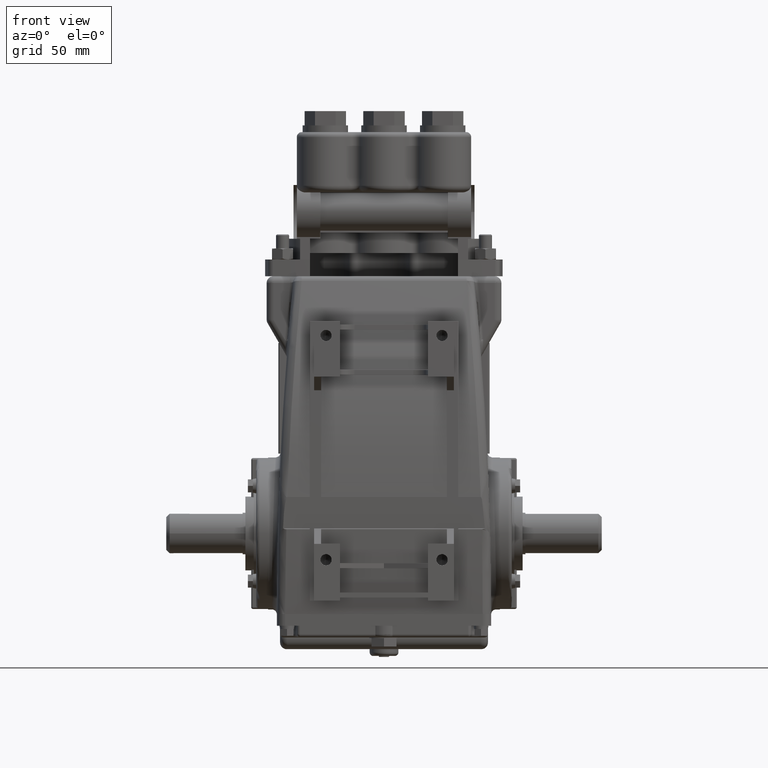
[diagram: clean part render]
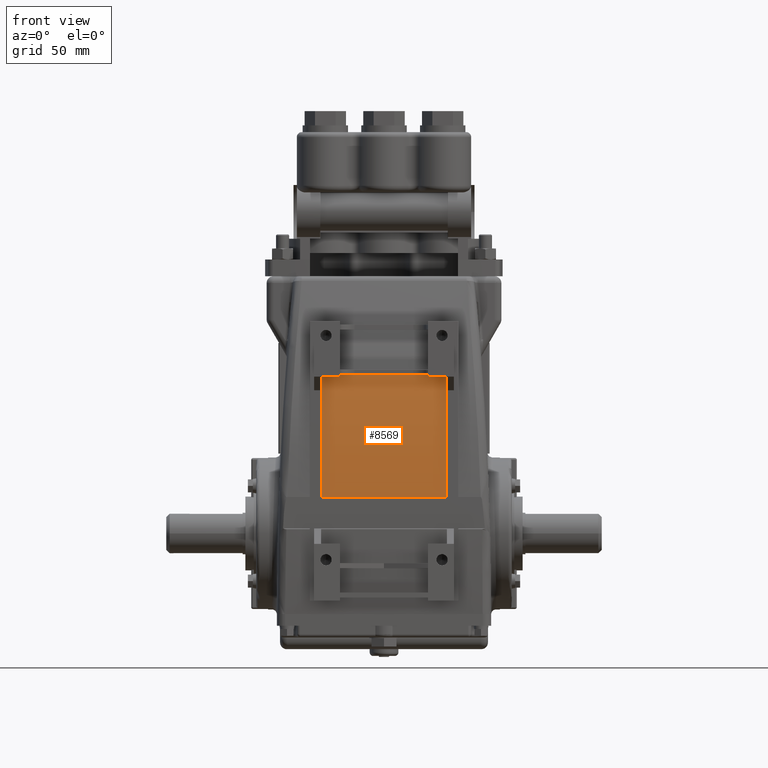
[diagram: same view with one face highlighted and labeled with its STEP entity id]
A machine part, front view. The second image highlights one B-rep face of the part: STEP entity #8569.
In plain terms, the highlighted cylindrical surface (partial cylindrical patch) has radius 634.291 mm, axis along (-1, -0, -0).
Its self-contained STEP definition (entity closure, byte-faithful):
#8407 = VERTEX_POINT ( 'NONE', #32108 ) ;
#8411 = EDGE_CURVE ( 'NONE', #8407, #8414, #32107, .T. ) ;
#8414 = VERTEX_POINT ( 'NONE', #32102 ) ;
#8434 = VERTEX_POINT ( 'NONE', #32123 ) ;
#8437 = EDGE_CURVE ( 'NONE', #8434, #8438, #32122, .T. ) ;
#8438 = VERTEX_POINT ( 'NONE', #32117 ) ;
#8540 = ORIENTED_EDGE ( 'NONE', *, *, #8541, .F. ) ;
#8541 = EDGE_CURVE ( 'NONE', #8542, #8579, #32245, .T. ) ;
#8542 = VERTEX_POINT ( 'NONE', #32240 ) ;
#8544 = ORIENTED_EDGE ( 'NONE', *, *, #8546, .F. ) ;
#8546 = EDGE_CURVE ( 'NONE', #8549, #8542, #32239, .T. ) ;
#8549 = VERTEX_POINT ( 'NONE', #32235 ) ;
#8550 = ORIENTED_EDGE ( 'NONE', *, *, #8551, .F. ) ;
#8551 = EDGE_CURVE ( 'NONE', #8552, #8549, #32234, .T. ) ;
#8552 = VERTEX_POINT ( 'NONE', #32288 ) ;
#8553 = ORIENTED_EDGE ( 'NONE', *, *, #8555, .F. ) ;
#8555 = EDGE_CURVE ( 'NONE', #8438, #8552, #32286, .T. ) ;
#8569 = ADVANCED_FACE ( 'NONE', ( #32306 ), #32346, .T. ) ;
#8570 = EDGE_LOOP ( 'NONE', ( #8571, #8572, #8575, #8576, #8540, #8544, #8550, #8553 ) ) ;
#8571 = ORIENTED_EDGE ( 'NONE', *, *, #8437, .F. ) ;
#8572 = ORIENTED_EDGE ( 'NONE', *, *, #8573, .T. ) ;
#8573 = EDGE_CURVE ( 'NONE', #8434, #8414, #32341, .T. ) ;
#8575 = ORIENTED_EDGE ( 'NONE', *, *, #8411, .F. ) ;
#8576 = ORIENTED_EDGE ( 'NONE', *, *, #8578, .F. ) ;
#8578 = EDGE_CURVE ( 'NONE', #8579, #8407, #32337, .T. ) ;
#8579 = VERTEX_POINT ( 'NONE', #32333 ) ;
#32102 = CARTESIAN_POINT ( 'NONE',  ( 1.874999999999999600, -2.863300000000000200, 1.087740777177397300 ) ) ;
#32103 = DIRECTION ( 'NONE',  ( 1.093960987013592300E-016, 0.0000000000000000000, 1.000000000000000000 ) ) ;
#32104 = DIRECTION ( 'NONE',  ( 1.000000000000000000, -0.0000000000000000000, -1.094929055576859100E-016 ) ) ;
#32105 = CARTESIAN_POINT ( 'NONE',  ( 1.874999999999998900, 22.08820325237938300, 0.07423032657123565500 ) ) ;
#32106 = AXIS2_PLACEMENT_3D ( 'NONE', #32105, #32104, #32103 ) ;
#32107 = CIRCLE ( 'NONE', #32106, 24.97207876783562600 ) ;
#32108 = CARTESIAN_POINT ( 'NONE',  ( 1.874999999999999600, -2.455464030696112000, 4.679999999999997900 ) ) ;
#32117 = CARTESIAN_POINT ( 'NONE',  ( -1.875000000000000000, -2.455464030696112000, 4.679999999999998800 ) ) ;
#32118 = DIRECTION ( 'NONE',  ( -2.187921974027184600E-016, 0.0000000000000000000, -1.000000000000000000 ) ) ;
#32119 = DIRECTION ( 'NONE',  ( -1.000000000000000000, -0.0000000000000000000, 2.189858111153718100E-016 ) ) ;
#32120 = CARTESIAN_POINT ( 'NONE',  ( -1.875000000000002200, 22.08820325237938300, 0.07423032657123565500 ) ) ;
#32121 = AXIS2_PLACEMENT_3D ( 'NONE', #32120, #32119, #32118 ) ;
#32122 = CIRCLE ( 'NONE', #32121, 24.97207876783562600 ) ;
#32123 = CARTESIAN_POINT ( 'NONE',  ( -1.875000000000002200, -2.863300000000000200, 1.087740777177397300 ) ) ;
#32231 = DIRECTION ( 'NONE',  ( -1.000000000000000000, -0.0000000000000000000, 1.092739197465711300E-014 ) ) ;
#32232 = CARTESIAN_POINT ( 'NONE',  ( -1.314000000000050500, 22.08820325237938300, 0.07423032657123565500 ) ) ;
#32233 = AXIS2_PLACEMENT_3D ( 'NONE', #32232, #32231, #32289 ) ;
#32234 = CIRCLE ( 'NONE', #32233, 24.97207876783562600 ) ;
#32235 = CARTESIAN_POINT ( 'NONE',  ( -1.314000000000000300, -2.446028480751527100, 4.729999999999997800 ) ) ;
#32236 = DIRECTION ( 'NONE',  ( 1.000000000000000000, 0.0000000000000000000, 0.0000000000000000000 ) ) ;
#32237 = VECTOR ( 'NONE', #32236, 39.37007874015748100 ) ;
#32238 = CARTESIAN_POINT ( 'NONE',  ( 3.193500000000000700, -2.446028480751527100, 4.729999999999997800 ) ) ;
#32239 = LINE ( 'NONE', #32238, #32237 ) ;
#32240 = CARTESIAN_POINT ( 'NONE',  ( 1.313999999999998900, -2.446028480751527100, 4.729999999999997800 ) ) ;
#32241 = DIRECTION ( 'NONE',  ( -1.092867026026578600E-014, 0.0000000000000000000, 1.000000000000000000 ) ) ;
#32242 = DIRECTION ( 'NONE',  ( 1.000000000000000000, -0.0000000000000000000, 1.092739197465711300E-014 ) ) ;
#32243 = CARTESIAN_POINT ( 'NONE',  ( 1.314000000000049800, 22.08820325237938300, 0.07423032657123565500 ) ) ;
#32244 = AXIS2_PLACEMENT_3D ( 'NONE', #32243, #32242, #32241 ) ;
#32245 = CIRCLE ( 'NONE', #32244, 24.97207876783562600 ) ;
#32283 = DIRECTION ( 'NONE',  ( 1.000000000000000000, 0.0000000000000000000, 0.0000000000000000000 ) ) ;
#32284 = VECTOR ( 'NONE', #32283, 39.37007874015748100 ) ;
#32285 = CARTESIAN_POINT ( 'NONE',  ( 3.193499999999999800, -2.455464030696112000, 4.679999999999998800 ) ) ;
#32286 = LINE ( 'NONE', #32285, #32284 ) ;
#32288 = CARTESIAN_POINT ( 'NONE',  ( -1.314000000000000300, -2.455464030696112000, 4.679999999999997900 ) ) ;
#32289 = DIRECTION ( 'NONE',  ( -1.092867026026578600E-014, 0.0000000000000000000, -1.000000000000000000 ) ) ;
#32306 = FACE_OUTER_BOUND ( 'NONE', #8570, .T. ) ;
#32333 = CARTESIAN_POINT ( 'NONE',  ( 1.313999999999999400, -2.455464030696112000, 4.679999999999998800 ) ) ;
#32334 = DIRECTION ( 'NONE',  ( 1.000000000000000000, 0.0000000000000000000, 0.0000000000000000000 ) ) ;
#32335 = VECTOR ( 'NONE', #32334, 39.37007874015748100 ) ;
#32336 = CARTESIAN_POINT ( 'NONE',  ( 3.193499999999999800, -2.455464030696112000, 4.679999999999998800 ) ) ;
#32337 = LINE ( 'NONE', #32336, #32335 ) ;
#32338 = DIRECTION ( 'NONE',  ( 1.000000000000000000, 0.0000000000000000000, 0.0000000000000000000 ) ) ;
#32339 = VECTOR ( 'NONE', #32338, 39.37007874015748100 ) ;
#32340 = CARTESIAN_POINT ( 'NONE',  ( 3.193499999999999800, -2.863300000000000200, 1.087740777177397300 ) ) ;
#32341 = LINE ( 'NONE', #32340, #32339 ) ;
#32342 = DIRECTION ( 'NONE',  ( 0.0000000000000000000, 0.0000000000000000000, 1.000000000000000000 ) ) ;
#32343 = DIRECTION ( 'NONE',  ( -1.000000000000000000, -0.0000000000000000000, -0.0000000000000000000 ) ) ;
#32344 = CARTESIAN_POINT ( 'NONE',  ( 3.193499999999999800, 22.08820325237938300, 0.07423032657123565500 ) ) ;
#32345 = AXIS2_PLACEMENT_3D ( 'NONE', #32344, #32343, #32342 ) ;
#32346 = CYLINDRICAL_SURFACE ( 'NONE', #32345, 24.97207876783562600 ) ;